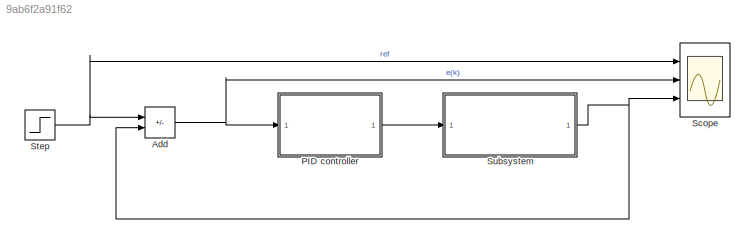
MODEL slx_9ab6f2a91f62
KIND model
CONFIG AbsTol = auto
CONFIG EnableMultiTasking = off
CONFIG FixedStep = auto
CONFIG MaxStep = auto
CONFIG MinStep = auto
CONFIG RelTol = 1e-3
CONFIG SampleTimeConstraint = Unconstrained
CONFIG SolverName = VariableStepAuto
CONFIG StartTime = 0.0
CONFIG StopTime = 10
BLOCK [Sum] Add
  IconShape = rectangular
  Inputs = +-
  Ports = [2, 1]
BLOCK [ModelReference] PID controller
  ModelNameDialog = PID_controller
  ModelReferenceVersion = 1.6
  Ports = [1, 1]
BLOCK [Scope] Scope
  Floating = off
  NumInputPorts = 3
  Ports = [3]
  ScopeSpecificationString = Simulink.scopes.TimeScopeBlockCfg('CurrentConfiguration', extmgr.ConfigurationSet(extmgr.Configuration('Core','General UI',true),extmgr.Configuration('Core','Source UI',true),extmgr.Configuration('Sources','WiredSimulink',true),extmgr.Configuration('Visuals','Time Domain',true,'SerializedDisplays',{struct('MinYLimReal','-0.125','MaxYLimReal','1.125','YLabelReal','','MinYLimMag','0.00000','MaxYLimM...<+2719ch>
BLOCK [Step] Step
  SampleTime = 0
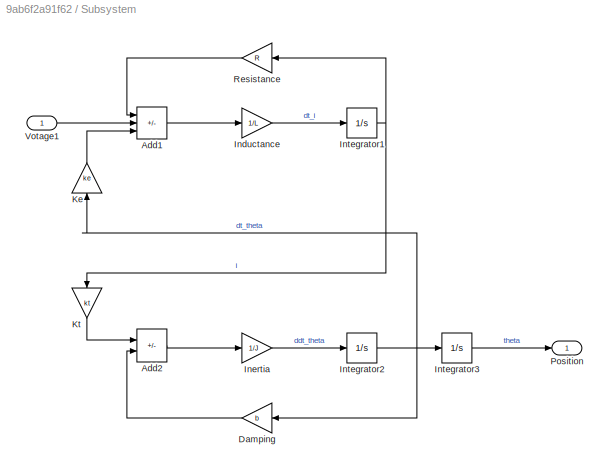
BLOCK [SubSystem] Subsystem
  Ports = [1, 1]
  RequestExecContextInheritance = off
BLOCK [Sum] Subsystem/Add1
  IconShape = rectangular
  Inputs = -+-
  Ports = [3, 1]
BLOCK [Sum] Subsystem/Add2
  IconShape = rectangular
  Inputs = +-
  Ports = [2, 1]
BLOCK [Gain] Subsystem/Damping
  Gain = b
BLOCK [Gain] Subsystem/Inductance
  Gain = 1/L
BLOCK [Gain] Subsystem/Inertia
  Gain = 1/J
BLOCK [Integrator] Subsystem/Integrator1
  Ports = [1, 1]
BLOCK [Integrator] Subsystem/Integrator2
  Ports = [1, 1]
BLOCK [Integrator] Subsystem/Integrator3
  Ports = [1, 1]
BLOCK [Gain] Subsystem/Ke
  Gain = ke
  NameLocation = right
BLOCK [Gain] Subsystem/Kt
  Gain = kt
  NameLocation = right
BLOCK [Outport] Subsystem/Position
BLOCK [Gain] Subsystem/Resistance
  Gain = R
BLOCK [Inport] Subsystem/Votage1
NET Add:1 -> PID controller:1, Scope:2
LINE PID controller:1 -> Subsystem:1
NET Step:1 -> Add:1, Scope:1
LINE Subsystem/Add1:1 -> Subsystem/Inductance:1
LINE Subsystem/Add2:1 -> Subsystem/Inertia:1
LINE Subsystem/Damping:1 -> Subsystem/Add2:2
LINE Subsystem/Inductance:1 -> Subsystem/Integrator1:1
LINE Subsystem/Inertia:1 -> Subsystem/Integrator2:1
NET Subsystem/Integrator1:1 -> Subsystem/Kt:1, Subsystem/Resistance:1
NET Subsystem/Integrator2:1 -> Subsystem/Damping:1, Subsystem/Integrator3:1, Subsystem/Ke:1
LINE Subsystem/Integrator3:1 -> Subsystem/Position:1
LINE Subsystem/Ke:1 -> Subsystem/Add1:3
LINE Subsystem/Kt:1 -> Subsystem/Add2:1
LINE Subsystem/Resistance:1 -> Subsystem/Add1:1
LINE Subsystem/Votage1:1 -> Subsystem/Add1:2
NET Subsystem:1 -> Add:2, Scope:3
note: NET lines group one-source signal fan-out (src -> all destinations, sorted); 1:1 wires keep LINE
